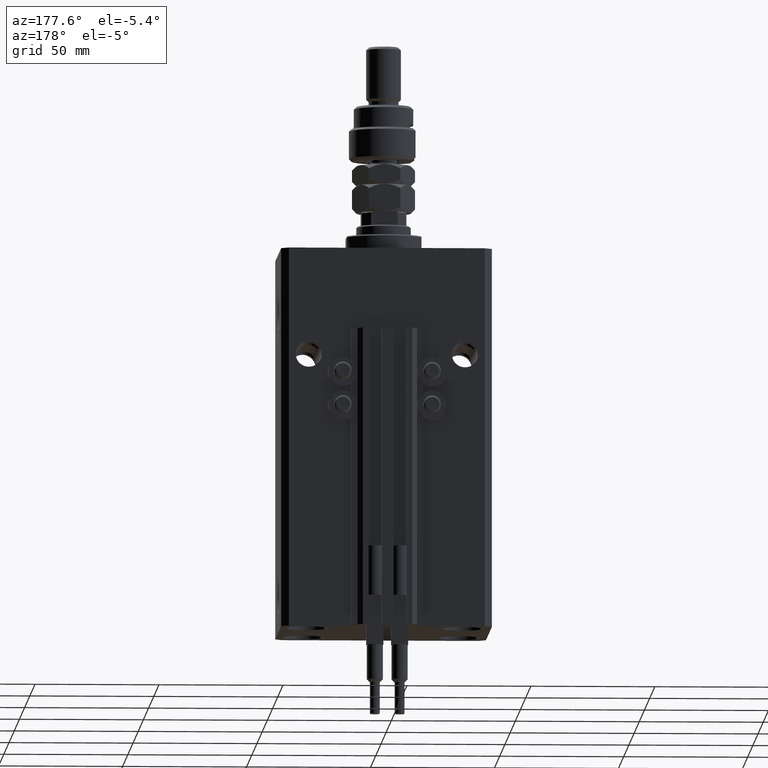
[diagram: clean part render]
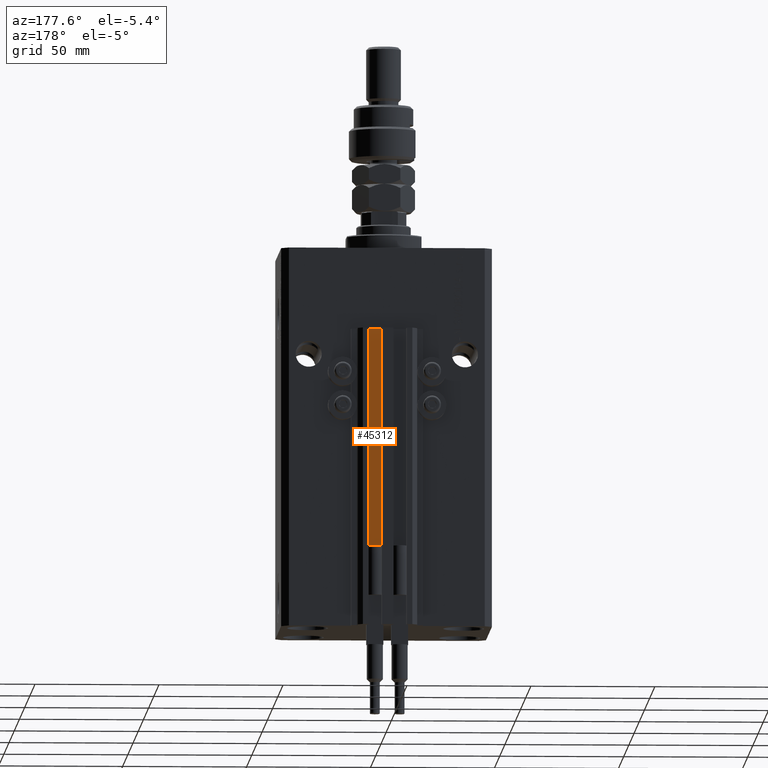
[diagram: same view with one face highlighted and labeled with its STEP entity id]
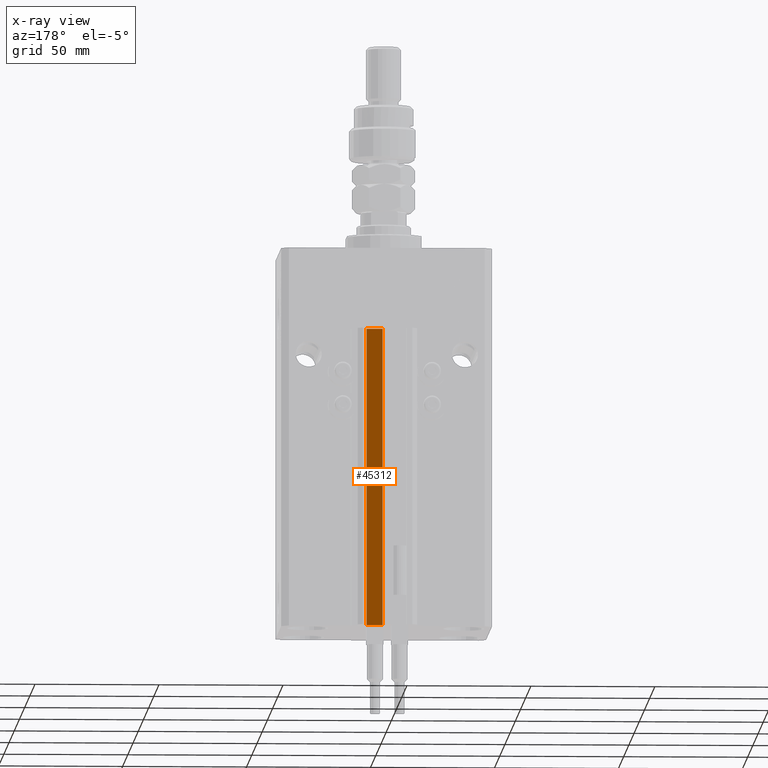
[diagram: x-ray of the same camera — body ghosted, the highlighted face saturated]
A machine part, auxiliary view. The second image highlights one B-rep face of the part: STEP entity #45312.
The next image is the same camera in x-ray: the body ghosted, the highlighted face saturated — about 0% of this face is hidden behind the body in this view.
In plain terms, the highlighted planar face has unit normal (0, 1, 0).
Its self-contained STEP definition (entity closure, byte-faithful):
#146 = LINE ( 'NONE', #16477, #16025 ) ;
#4080 = DIRECTION ( 'NONE',  ( 0.000000000000000000, 0.000000000000000000, 1.000000000000000000 ) ) ;
#5121 = ORIENTED_EDGE ( 'NONE', *, *, #31313, .T. ) ;
#5587 = CARTESIAN_POINT ( 'NONE',  ( 1.800000000000000933, 33.50000000000000000, -153.0000000000000000 ) ) ;
#5839 = DIRECTION ( 'NONE',  ( 0.000000000000000000, 0.000000000000000000, 1.000000000000000000 ) ) ;
#6533 = CARTESIAN_POINT ( 'NONE',  ( 1.800000000000000933, 33.50000000000000000, -33.00000000000000000 ) ) ;
#9023 = VERTEX_POINT ( 'NONE', #15741 ) ;
#13672 = ORIENTED_EDGE ( 'NONE', *, *, #27646, .T. ) ;
#14694 = CARTESIAN_POINT ( 'NONE',  ( 1.800000000000000933, 33.50000000000000000, -153.0000000000000000 ) ) ;
#15741 = CARTESIAN_POINT ( 'NONE',  ( 8.199999999999999289, 33.50000000000000000, -153.0000000000000000 ) ) ;
#16025 = VECTOR ( 'NONE', #32308, 1000.000000000000000 ) ;
#16477 = CARTESIAN_POINT ( 'NONE',  ( 8.199999999999999289, 33.50000000000000000, -153.0000000000000000 ) ) ;
#18487 = VECTOR ( 'NONE', #35375, 1000.000000000000000 ) ;
#21432 = AXIS2_PLACEMENT_3D ( 'NONE', #49819, #30134, #4080 ) ;
#23787 = PLANE ( 'NONE',  #21432 ) ;
#24739 = CARTESIAN_POINT ( 'NONE',  ( 8.199999999999999289, 33.50000000000000000, -33.00000000000000000 ) ) ;
#24989 = LINE ( 'NONE', #24739, #38584 ) ;
#25364 = VERTEX_POINT ( 'NONE', #46893 ) ;
#27646 = EDGE_CURVE ( 'NONE', #9023, #31150, #146, .T. ) ;
#28512 = VECTOR ( 'NONE', #5839, 1000.000000000000000 ) ;
#29244 = ORIENTED_EDGE ( 'NONE', *, *, #30212, .F. ) ;
#30134 = DIRECTION ( 'NONE',  ( 0.000000000000000000, 1.000000000000000000, -0.000000000000000000 ) ) ;
#30212 = EDGE_CURVE ( 'NONE', #9023, #25364, #43413, .T. ) ;
#30429 = VERTEX_POINT ( 'NONE', #6533 ) ;
#31150 = VERTEX_POINT ( 'NONE', #14694 ) ;
#31313 = EDGE_CURVE ( 'NONE', #31150, #30429, #41405, .T. ) ;
#31592 = FACE_OUTER_BOUND ( 'NONE', #32064, .T. ) ;
#32064 = EDGE_LOOP ( 'NONE', ( #37375, #29244, #13672, #5121 ) ) ;
#32308 = DIRECTION ( 'NONE',  ( -1.000000000000000000, 0.000000000000000000, 0.000000000000000000 ) ) ;
#35375 = DIRECTION ( 'NONE',  ( 0.000000000000000000, 0.000000000000000000, 1.000000000000000000 ) ) ;
#35639 = EDGE_CURVE ( 'NONE', #25364, #30429, #24989, .T. ) ;
#37375 = ORIENTED_EDGE ( 'NONE', *, *, #35639, .F. ) ;
#38584 = VECTOR ( 'NONE', #40842, 1000.000000000000000 ) ;
#39280 = CARTESIAN_POINT ( 'NONE',  ( 8.199999999999999289, 33.50000000000000000, -153.0000000000000000 ) ) ;
#40842 = DIRECTION ( 'NONE',  ( -1.000000000000000000, 0.000000000000000000, 0.000000000000000000 ) ) ;
#41405 = LINE ( 'NONE', #5587, #28512 ) ;
#43413 = LINE ( 'NONE', #39280, #18487 ) ;
#45312 = ADVANCED_FACE ( 'NONE', ( #31592 ), #23787, .T. ) ;
#46893 = CARTESIAN_POINT ( 'NONE',  ( 8.199999999999999289, 33.50000000000000000, -33.00000000000000000 ) ) ;
#49819 = CARTESIAN_POINT ( 'NONE',  ( 8.199999999999999289, 33.50000000000000000, -153.0000000000000000 ) ) ;